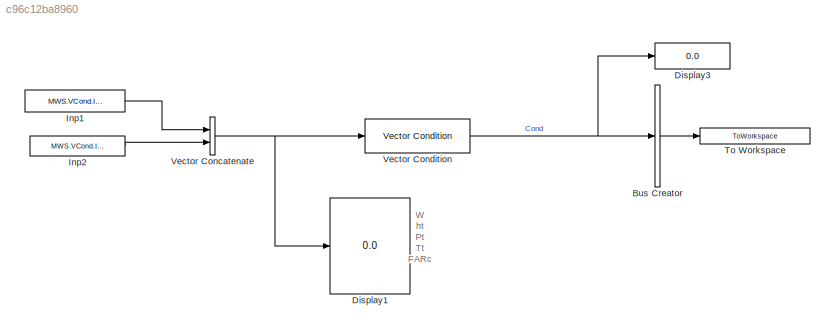
MODEL slx_c96c12ba8960
KIND model
CONFIG AbsTol = auto
CONFIG EnableMultiTasking = on
CONFIG FixedStep = 1
CONFIG MaxStep = auto
CONFIG MinStep = auto
CONFIG RelTol = 1e-3
CONFIG SampleTimeConstraint = Unconstrained
CONFIG Solver = FixedStepDiscrete
CONFIG SolverName = FixedStepDiscrete
CONFIG StartTime = 0.0
CONFIG StopTime = 1
BLOCK [BusCreator] Bus Creator
  DisplayOption = bar
  InheritFromInputs = on
  Inputs = 1
  Ports = [1, 1]
BLOCK [Display] Display1
  Decimation = 1
  Ports = [1]
BLOCK [Display] Display3
  Decimation = 1
  Format = long
  Ports = [1]
BLOCK [Constant] Inp1
  Value = MWS.VCond.Inp1
BLOCK [Constant] Inp2
  Value = MWS.VCond.Inp2
BLOCK [ToWorkspace] To Workspace
  MaxDataPoints = inf
  Ports = [1]
  SampleTime = -1
  VariableName = TB_Output
BLOCK [Concatenate] Vector Concatenate
  Ports = [2, 1]
BLOCK [Reference] Vector Condition  REF=Lib_Solve_VectorCondition_TMATS/Vector Condition
  Ports = [1, 1]
  SourceBlock = Lib_Solve_VectorCondition_TMATS/Vector Condition
  SourceType = T-MATS: Vector Condition Library Block
ANNOTATION (root): W ht Pt Tt FARc
LINE Bus Creator:1 -> To Workspace:1
LINE Inp1:1 -> Vector Concatenate:1
LINE Inp2:1 -> Vector Concatenate:2
NET Vector Concatenate:1 -> Display1:1, Vector Condition:1
NET Vector Condition:1 -> Bus Creator:1, Display3:1
note: NET lines group one-source signal fan-out (src -> all destinations, sorted); 1:1 wires keep LINE
